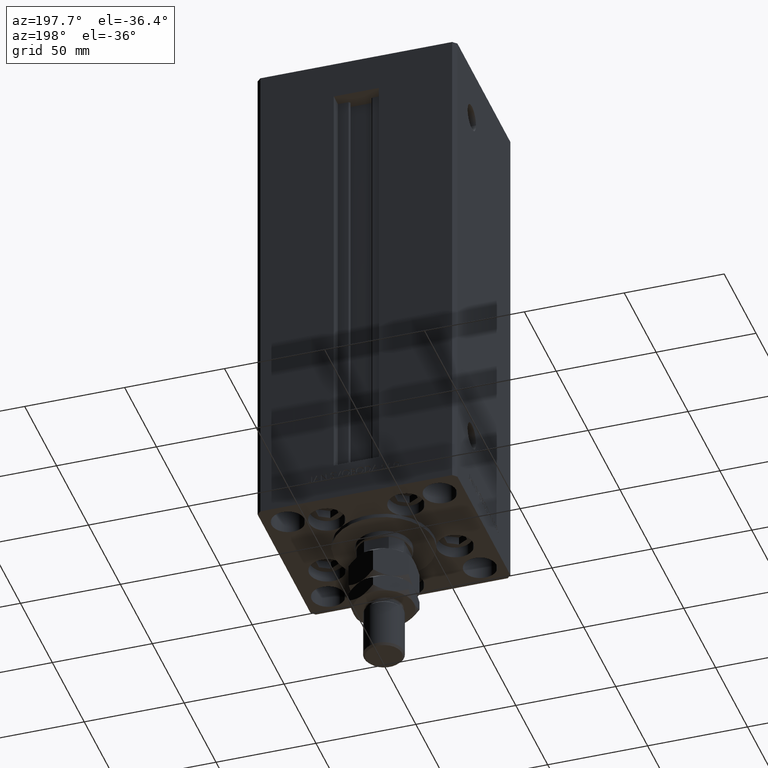
[diagram: clean part render]
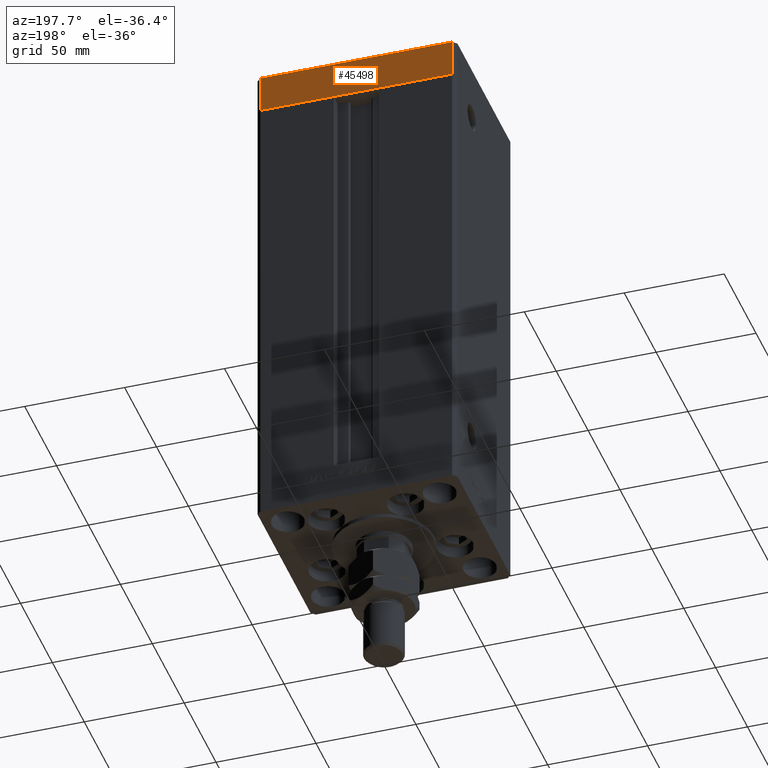
[diagram: same view with one face highlighted and labeled with its STEP entity id]
A machine part, auxiliary view. The second image highlights one B-rep face of the part: STEP entity #45498.
In plain terms, the highlighted planar face has unit normal (-0, 1, 0).
Its self-contained STEP definition (entity closure, byte-faithful):
#589 = CARTESIAN_POINT ( 'NONE',  ( -48.00000000000000711, 43.49999999999996447, -19.00000000000000000 ) ) ;
#1657 = CARTESIAN_POINT ( 'NONE',  ( 47.99999999999990763, 43.50000000000000000, -19.00000000000000000 ) ) ;
#2162 = CARTESIAN_POINT ( 'NONE',  ( 47.99999999999990763, 43.50000000000000000, -19.00000000000000000 ) ) ;
#3800 = CARTESIAN_POINT ( 'NONE',  ( -48.00000000000000711, 43.49999999999996447, -19.00000000000000000 ) ) ;
#8205 = VERTEX_POINT ( 'NONE', #3800 ) ;
#8725 = DIRECTION ( 'NONE',  ( -1.000000000000000000, -3.614007241618350743E-16, 0.000000000000000000 ) ) ;
#10281 = CARTESIAN_POINT ( 'NONE',  ( -48.00000000000000711, 43.49999999999996447, 0.000000000000000000 ) ) ;
#12721 = VERTEX_POINT ( 'NONE', #2162 ) ;
#13410 = VECTOR ( 'NONE', #24989, 1000.000000000000000 ) ;
#13567 = CARTESIAN_POINT ( 'NONE',  ( 47.99999999999990763, 43.50000000000000000, 0.000000000000000000 ) ) ;
#16563 = FACE_OUTER_BOUND ( 'NONE', #22371, .T. ) ;
#18573 = ORIENTED_EDGE ( 'NONE', *, *, #28791, .T. ) ;
#21567 = CARTESIAN_POINT ( 'NONE',  ( 47.99999999999990763, 43.50000000000000000, -19.00000000000000000 ) ) ;
#22371 = EDGE_LOOP ( 'NONE', ( #43975, #35493, #47856, #18573 ) ) ;
#23852 = AXIS2_PLACEMENT_3D ( 'NONE', #1657, #45311, #8725 ) ;
#24989 = DIRECTION ( 'NONE',  ( 0.000000000000000000, 0.000000000000000000, 1.000000000000000000 ) ) ;
#26077 = VERTEX_POINT ( 'NONE', #10281 ) ;
#26898 = LINE ( 'NONE', #45994, #28112 ) ;
#28112 = VECTOR ( 'NONE', #46251, 1000.000000000000000 ) ;
#28270 = EDGE_CURVE ( 'NONE', #12721, #47826, #28394, .T. ) ;
#28394 = LINE ( 'NONE', #45126, #13410 ) ;
#28791 = EDGE_CURVE ( 'NONE', #8205, #26077, #36388, .T. ) ;
#29944 = LINE ( 'NONE', #21567, #41237 ) ;
#35493 = ORIENTED_EDGE ( 'NONE', *, *, #28270, .F. ) ;
#36388 = LINE ( 'NONE', #589, #45186 ) ;
#38210 = EDGE_CURVE ( 'NONE', #12721, #8205, #29944, .T. ) ;
#41237 = VECTOR ( 'NONE', #42238, 1000.000000000000000 ) ;
#42238 = DIRECTION ( 'NONE',  ( -1.000000000000000000, -3.614007241618350743E-16, 0.000000000000000000 ) ) ;
#43975 = ORIENTED_EDGE ( 'NONE', *, *, #48011, .F. ) ;
#45126 = CARTESIAN_POINT ( 'NONE',  ( 47.99999999999990763, 43.50000000000000000, -19.00000000000000000 ) ) ;
#45186 = VECTOR ( 'NONE', #48655, 1000.000000000000000 ) ;
#45311 = DIRECTION ( 'NONE',  ( -3.614007241618350743E-16, 1.000000000000000000, 0.000000000000000000 ) ) ;
#45498 = ADVANCED_FACE ( 'NONE', ( #16563 ), #45566, .T. ) ;
#45566 = PLANE ( 'NONE',  #23852 ) ;
#45994 = CARTESIAN_POINT ( 'NONE',  ( 47.99999999999990763, 43.50000000000000000, 0.000000000000000000 ) ) ;
#46251 = DIRECTION ( 'NONE',  ( -1.000000000000000000, -3.614007241618350743E-16, 0.000000000000000000 ) ) ;
#47826 = VERTEX_POINT ( 'NONE', #13567 ) ;
#47856 = ORIENTED_EDGE ( 'NONE', *, *, #38210, .T. ) ;
#48011 = EDGE_CURVE ( 'NONE', #47826, #26077, #26898, .T. ) ;
#48655 = DIRECTION ( 'NONE',  ( 0.000000000000000000, 0.000000000000000000, 1.000000000000000000 ) ) ;